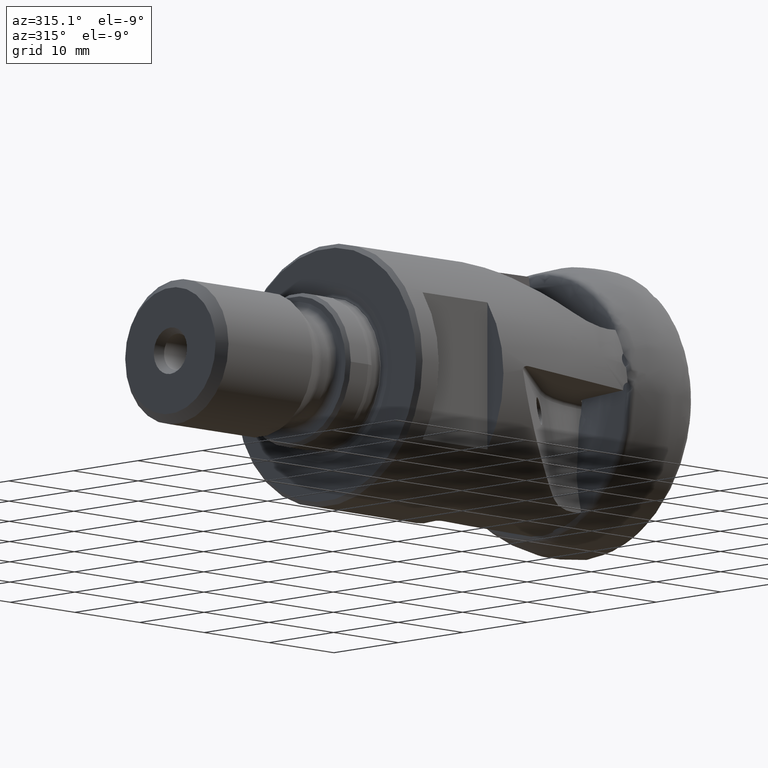
[diagram: clean part render]
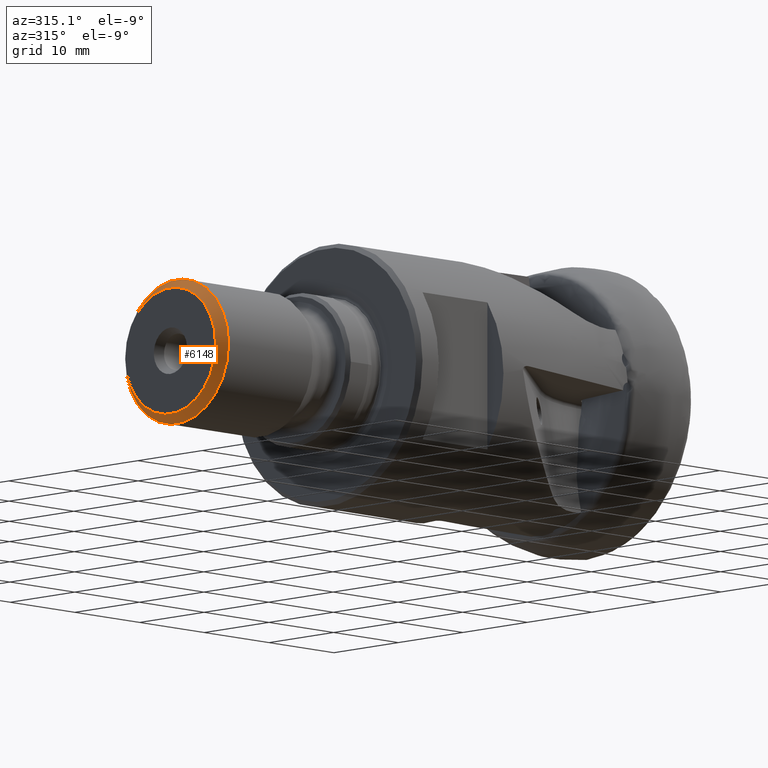
[diagram: same view with one face highlighted and labeled with its STEP entity id]
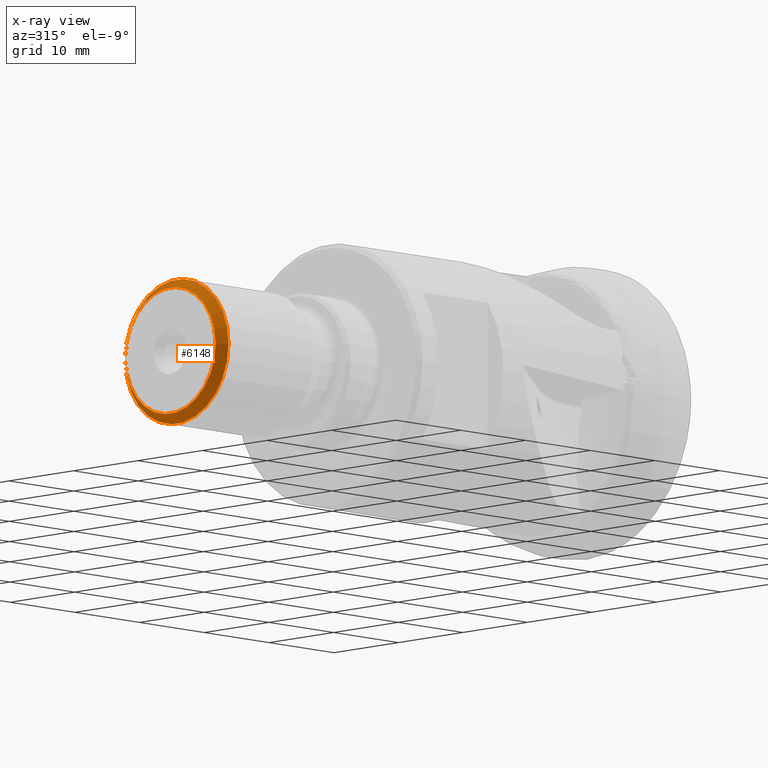
[diagram: x-ray of the same camera — body ghosted, the highlighted face saturated]
A machine part, auxiliary view. The second image highlights one B-rep face of the part: STEP entity #6148.
The next image is the same camera in x-ray: the body ghosted, the highlighted face saturated — about 0% of this face is hidden behind the body in this view.
In plain terms, the highlighted conical surface has half-angle 45 deg.
Its self-contained STEP definition (entity closure, byte-faithful):
#377 = ORIENTED_EDGE ( 'NONE', *, *, #5414, .F. ) ;
#816 = AXIS2_PLACEMENT_3D ( 'NONE', #1747, #5309, #2255 ) ;
#849 = CIRCLE ( 'NONE', #6502, 6.999999999999999100 ) ;
#1539 = CARTESIAN_POINT ( 'NONE',  ( -64.04999999999999700, -7.843862748538786600E-015, 0.0000000000000000000 ) ) ;
#1680 = AXIS2_PLACEMENT_3D ( 'NONE', #1539, #6156, #5623 ) ;
#1747 = CARTESIAN_POINT ( 'NONE',  ( -64.04999999999999700, -7.843862748538786600E-015, 0.0000000000000000000 ) ) ;
#1784 = CARTESIAN_POINT ( 'NONE',  ( -65.04999999999999700, -7.966327428453520100E-015, 0.0000000000000000000 ) ) ;
#2255 = DIRECTION ( 'NONE',  ( 0.0000000000000000000, 1.000000000000000000, 0.0000000000000000000 ) ) ;
#2293 = DIRECTION ( 'NONE',  ( 0.0000000000000000000, 1.000000000000000000, 0.0000000000000000000 ) ) ;
#2390 = CONICAL_SURFACE ( 'NONE', #1680, 8.000000000000001800, 0.7853981633974491700 ) ;
#2548 = FACE_OUTER_BOUND ( 'NONE', #4451, .T. ) ;
#2708 = FACE_BOUND ( 'NONE', #5724, .T. ) ;
#3210 = VERTEX_POINT ( 'NONE', #4480 ) ;
#3368 = VERTEX_POINT ( 'NONE', #6520 ) ;
#3950 = EDGE_CURVE ( 'NONE', #3368, #3368, #849, .T. ) ;
#4451 = EDGE_LOOP ( 'NONE', ( #377 ) ) ;
#4466 = CIRCLE ( 'NONE', #816, 8.000000000000001800 ) ;
#4480 = CARTESIAN_POINT ( 'NONE',  ( -64.04999999999999700, 7.999999999999992900, 0.0000000000000000000 ) ) ;
#5309 = DIRECTION ( 'NONE',  ( 1.000000000000000000, 1.224646799147351500E-016, -0.0000000000000000000 ) ) ;
#5350 = DIRECTION ( 'NONE',  ( 1.000000000000000000, 1.224646799147351500E-016, -0.0000000000000000000 ) ) ;
#5414 = EDGE_CURVE ( 'NONE', #3210, #3210, #4466, .T. ) ;
#5623 = DIRECTION ( 'NONE',  ( 0.0000000000000000000, 1.000000000000000000, 0.0000000000000000000 ) ) ;
#5724 = EDGE_LOOP ( 'NONE', ( #6352 ) ) ;
#6148 = ADVANCED_FACE ( 'NONE', ( #2708, #2548 ), #2390, .T. ) ;
#6156 = DIRECTION ( 'NONE',  ( 1.000000000000000000, 1.224646799147351500E-016, -0.0000000000000000000 ) ) ;
#6352 = ORIENTED_EDGE ( 'NONE', *, *, #3950, .T. ) ;
#6502 = AXIS2_PLACEMENT_3D ( 'NONE', #1784, #5350, #2293 ) ;
#6520 = CARTESIAN_POINT ( 'NONE',  ( -65.04999999999999700, 6.999999999999991100, 0.0000000000000000000 ) ) ;